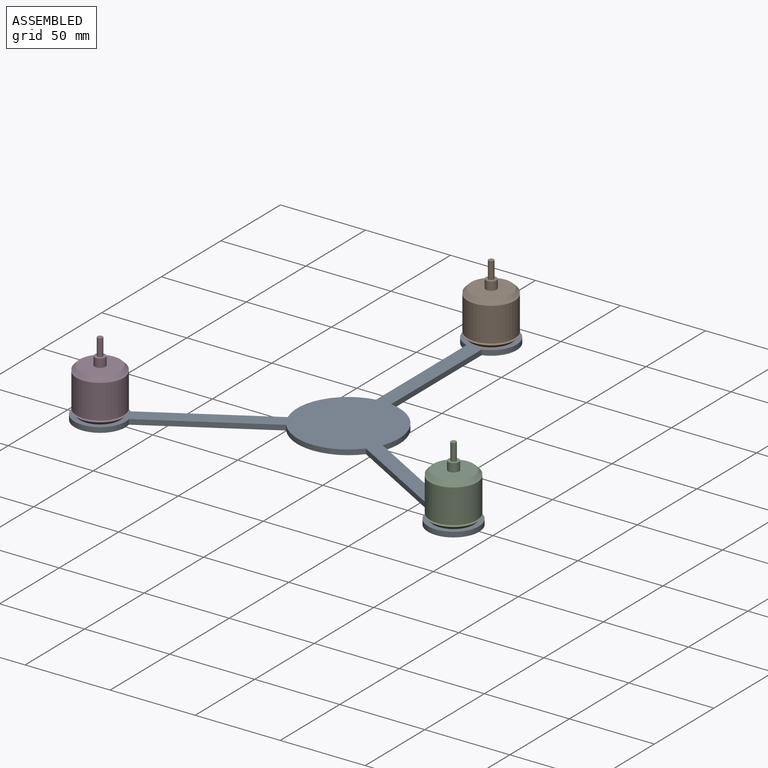
[diagram: assembled view]
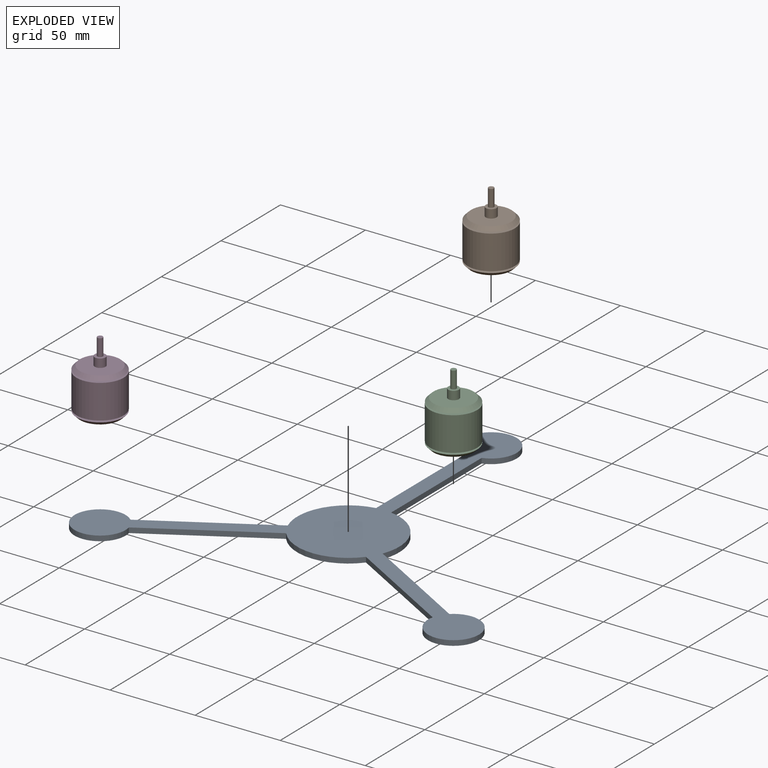
[diagram: exploded view]
GUIDED TOUR — MATED ASSEMBLY (Onshape document 2df442e925de51a92f70af06, AutoMate assembly 2df442e925de51a92f70af06_5c1b47b4a1ce3a622241a308_97fae621e1d96bd23d4e9ec1_default)

This assembly has 4 components, labeled P0..P3 below (a component is one placed occurrence of a part; the same part can appear more than once), held together by 3 mates. A mate is a constraint between two components; its type names the relative motion it leaves free:
  FASTENED — locks the two components together rigidly (no relative motion).
Axis/direction vectors are unit vectors and 'through' points are millimeter coordinates, both in the assembly's world frame.

MATES
  1. FASTENED "Fastened 2": P0 <-> P3, direction (0.000, 0.000, 1.000) through (-103.92, -60.00, 0.00) mm
  2. FASTENED "Fastened 2": P0 <-> P2, direction (0.000, 0.000, 1.000) through (103.92, -60.00, 0.00) mm
  3. FASTENED "Fastened 2": P0 <-> P1, direction (0.000, 0.000, 1.000) through (0.00, 120.00, 0.00) mm

ASSEMBLY ORDER
  1. P3 — the base component [order verified]
  2. P2 [order verified]
  3. P1 [order verified]
  4. P0 [order verified]
Order-tag legend:
  [order verified] — this step's position reverses a verified removal order: the component was checked to insert without passing through the ones already placed.

Of the 4 components, 4 carry the full construction recipe — the FeatureScript program that regenerates the part's solid from scratch; the rest are supplied as boundary geometry only.
Each toured component is shown spotlighted twice — in the assembled view, then in the exploded view, where a leader line traces a displaced component back to its assembled socket (saturated green if recipe-attached, orange if geometry-only; every other component desaturated gray) — followed by its recipe or geometry summary and the mates that hold it.
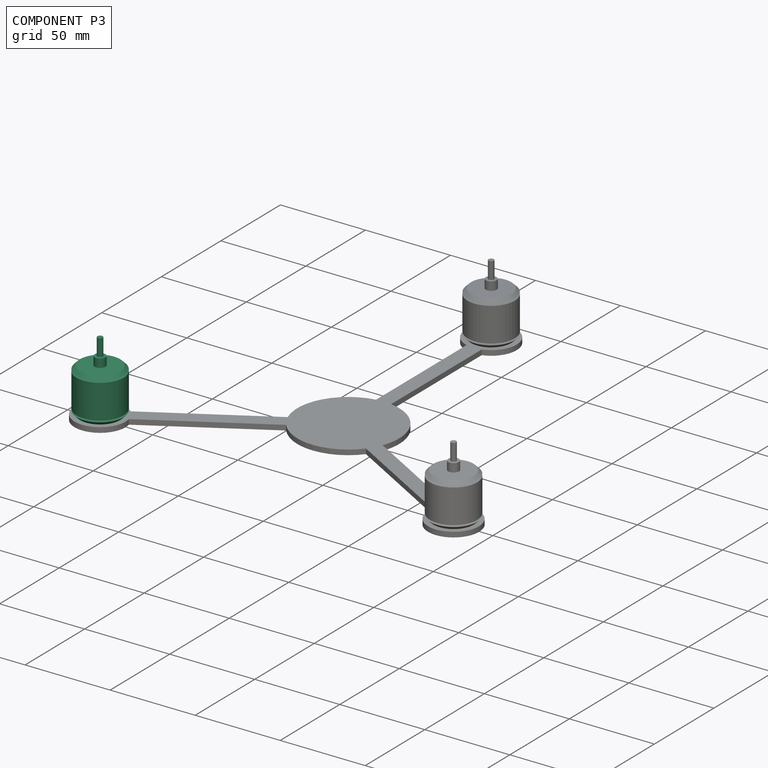
[diagram: component P3 — assembled]
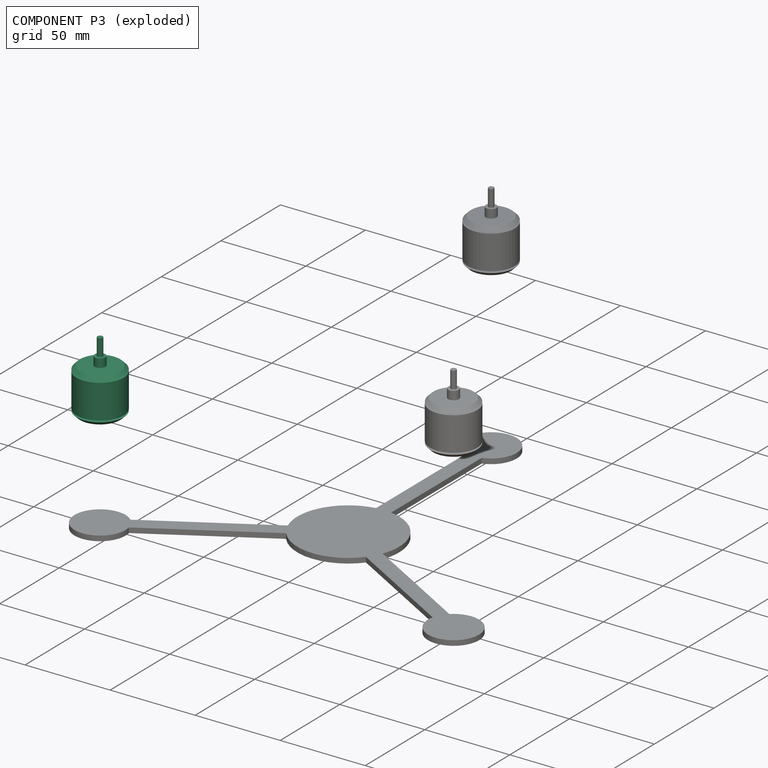
[diagram: component P3 — exploded]
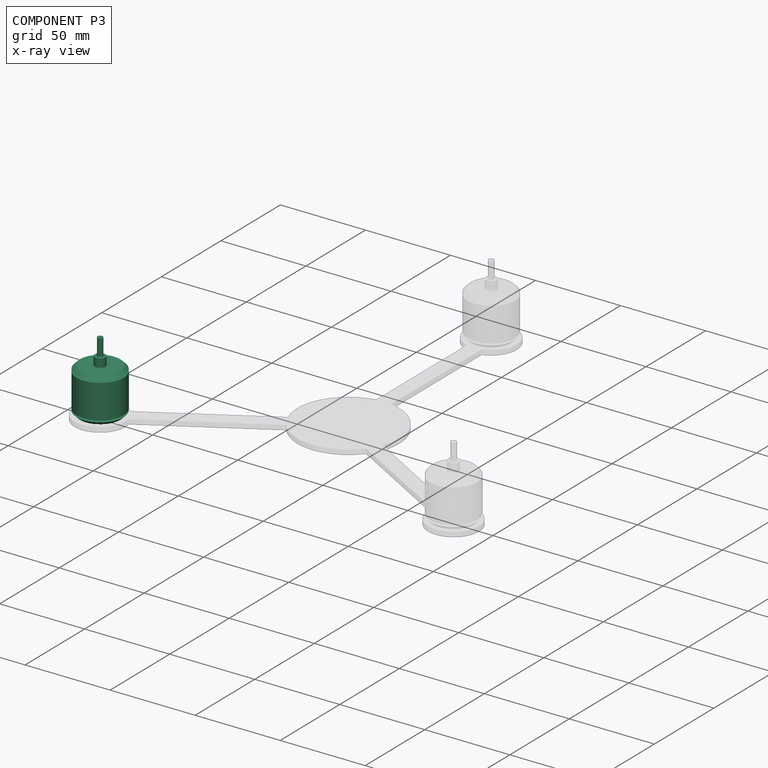
[diagram: component P3 — x-ray view]
COMPONENT P3 — same part as P1 (CADFS 00107351); its construction recipe is shown at P1.
Held by: FASTENED mate "Fastened 2" to P0.
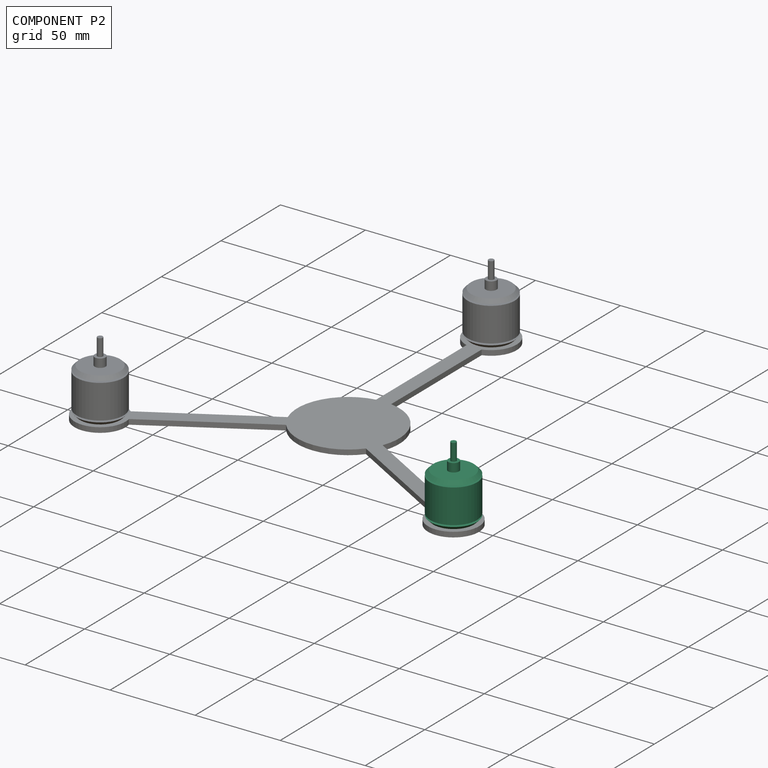
[diagram: component P2 — assembled]
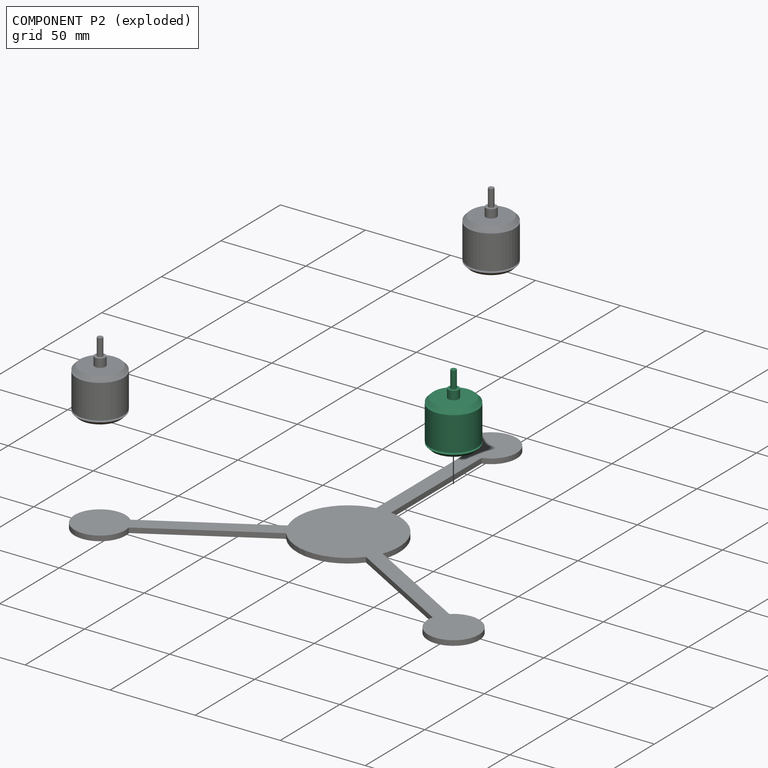
[diagram: component P2 — exploded]
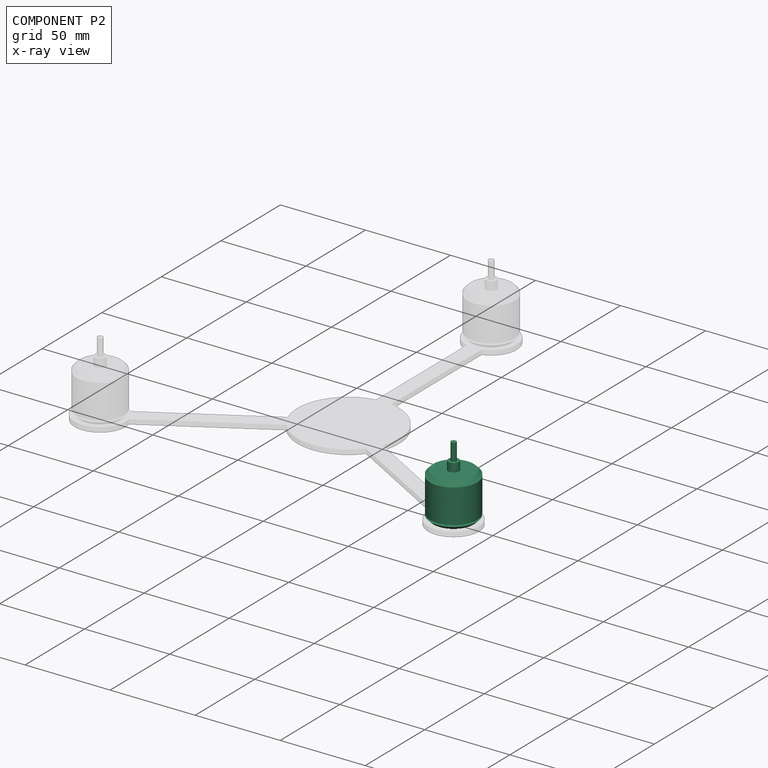
[diagram: component P2 — x-ray view]
COMPONENT P2 — same part as P1 (CADFS 00107351); its construction recipe is shown at P1.
Held by: FASTENED mate "Fastened 2" to P0.
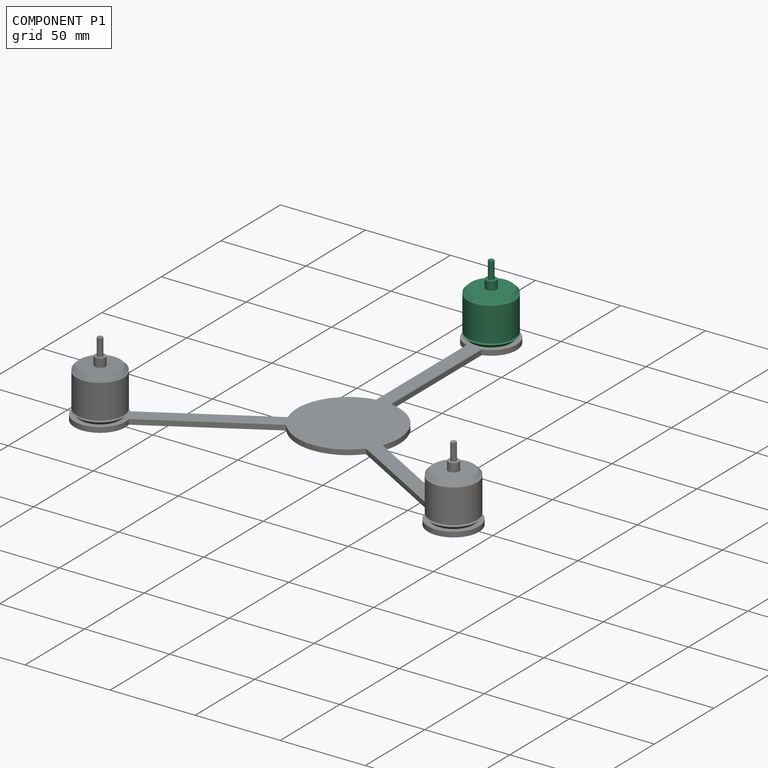
[diagram: component P1 — assembled]
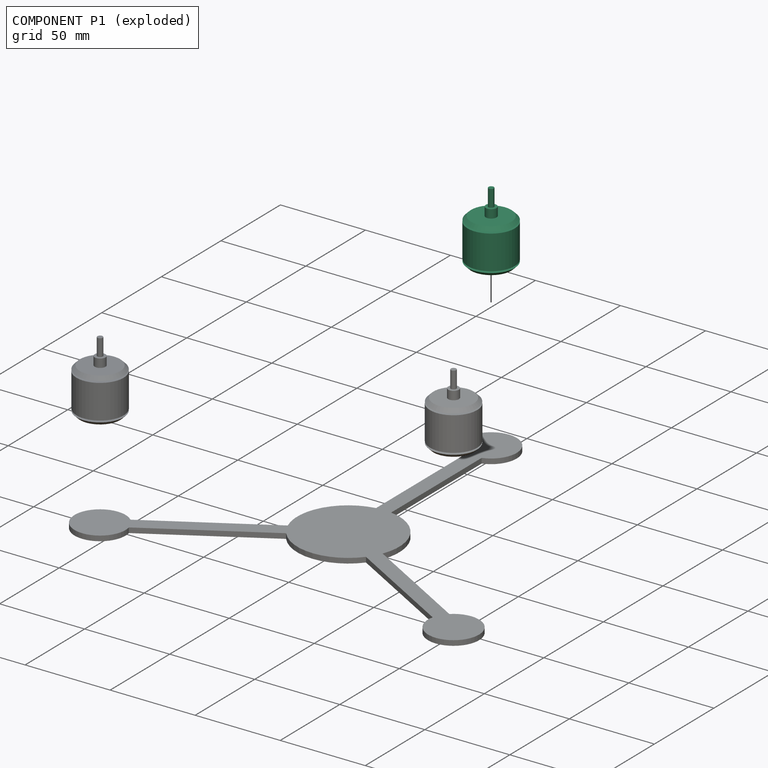
[diagram: component P1 — exploded]
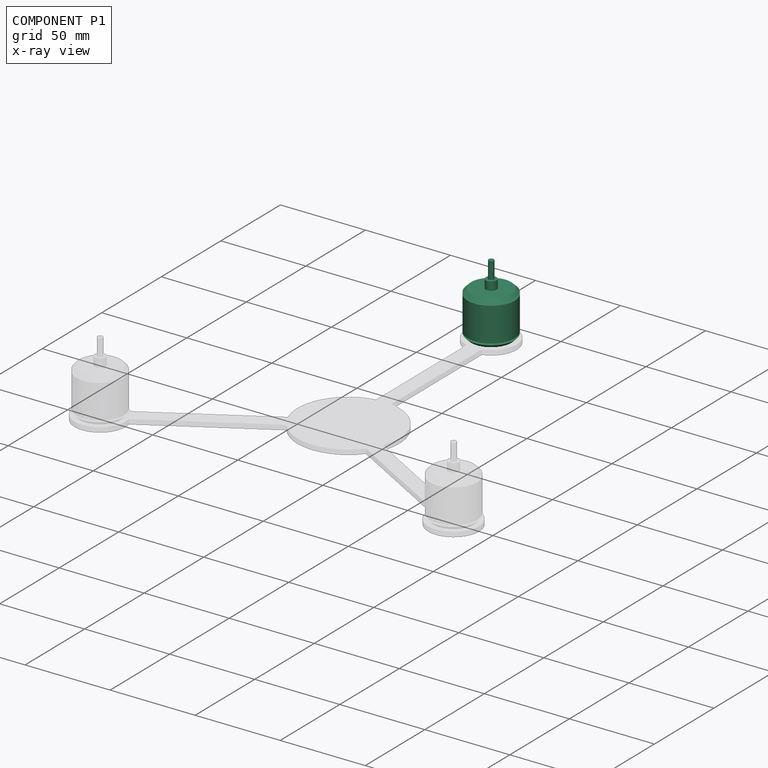
[diagram: component P1 — x-ray view]
COMPONENT P1 — recipe-attached (CADFS 00107351, mesh-verified: the recipe's output STEP matches this component's geometry to below the mesh-comparison resolution (tessellation chordal tolerance ~0.085 mm)).
Held by: FASTENED mate "Fastened 2" to P0.
Construction recipe (FeatureScript — the CAD program that rebuilds this solid; sketch coordinates are in the units given by the * unit suffixes, e.g. mm):

FeatureScript 1511;
import(path : "onshape/std/geometry.fs", version : "1511.0");
import(path : "onshape/std/common.fs", version : "1511.0");
const mm = millimeter;
const VERTEX = EntityType.VERTEX;
const EDGE = EntityType.EDGE;
const FACE = EntityType.FACE;
const BODY = EntityType.BODY;
function v(x, y){return vector(x, y);}
function OD(order){return orderDisambiguation(order);}
function OSD(set){return originalSetDisambiguation(set);}
function TD(topology){return topologyDisambiguation(topology);}
function TDD(query){return trueDependencyDisambiguation(query);}
function sQuery(a, b, c) {return sketchEntityQuery(a, b, c);}

annotation { "Feature Type Name" : "Feature", "Feature Type Description" : "" }
export const myFeature = defineFeature(function(context is Context, id is Id, definition is map)
    precondition{}
    {
        {
            var Q0;
            Q0=qCreatedBy(makeId("Front.planeOp"),FACE);
            var sketch = newSketch(context, id + "F0", { "sketchPlane" : qUnion([Q0])});
            skLineSegment(sketch, "E0", {"start": v(0, 0) * mm, "end": v(-11.85, 0) * mm});
            skLineSegment(sketch, "E1", {"start": v(-11.85, 0) * mm, "end": v(-13.85, 2) * mm});
            skLineSegment(sketch, "E2", {"start": v(-13.85, 2) * mm, "end": v(-1.59, 2) * mm});
            skLineSegment(sketch, "E3", {"start": v(0, 2) * mm, "end": v(0, 0) * mm});
            skLineSegment(sketch, "E4.bottom", {"start": v(-1.59, 3) * mm, "end": v(-13.85, 3) * mm});
            skLineSegment(sketch, "E4.top", {"start": v(-1.59, 23) * mm, "end": v(-13.85, 23) * mm});
            skLineSegment(sketch, "E4.left", {"start": v(0, 3) * mm, "end": v(0, 23) * mm});
            skLineSegment(sketch, "E4.right", {"start": v(-13.85, 3) * mm, "end": v(-13.85, 23) * mm});
            skLineSegment(sketch, "E5", {"start": v(-1.59, 24) * mm, "end": v(-13.85, 24) * mm});
            skLineSegment(sketch, "E6", {"start": v(-13.85, 24) * mm, "end": v(-11.85, 26) * mm});
            skLineSegment(sketch, "E7", {"start": v(-11.85, 26) * mm, "end": v(-3.18, 26) * mm});
            skLineSegment(sketch, "E8", {"start": v(0, 26) * mm, "end": v(0, 24) * mm});
            skLineSegment(sketch, "E9.top", {"start": v(-1.59, 31) * mm, "end": v(-3.18, 31) * mm});
            skLineSegment(sketch, "E9.left", {"start": v(0, 26) * mm, "end": v(0, 31) * mm});
            skLineSegment(sketch, "E9.right", {"start": v(-3.17, 26) * mm, "end": v(-3.18, 31) * mm});
            skLineSegment(sketch, "E10.top", {"start": v(0, 41) * mm, "end": v(-1.59, 41) * mm});
            skLineSegment(sketch, "E10.left", {"start": v(0, 31) * mm, "end": v(0, 41) * mm});
            skLineSegment(sketch, "E10.right", {"start": v(-1.59, 31) * mm, "end": v(-1.59, 41) * mm});
            skLineSegment(sketch, "E11", {"start": v(0, 3) * mm, "end": v(0, 2) * mm});
            skLineSegment(sketch, "E12", {"start": v(0, 23) * mm, "end": v(0, 24) * mm});
            skLineSegment(sketch, "E13", {"start": v(-1.59, 24) * mm, "end": v(-1.59, 23) * mm});
            skLineSegment(sketch, "E14", {"start": v(-1.59, 2) * mm, "end": v(-1.59, 3) * mm});
            skSolve(sketch);
        }
        {
            var Q0;
            Q0=qSketchRegion(id+"F0",true);
            var Q1;
            Q1=sQuery(id+"F0.wireOp",EDGE,"E4.left");
            revolve(context, id + "F1", {"entities" : qUnion([Q0]), "axis" : qUnion([Q1]), "revolveType" : RevolveType.FULL});
        }
    });
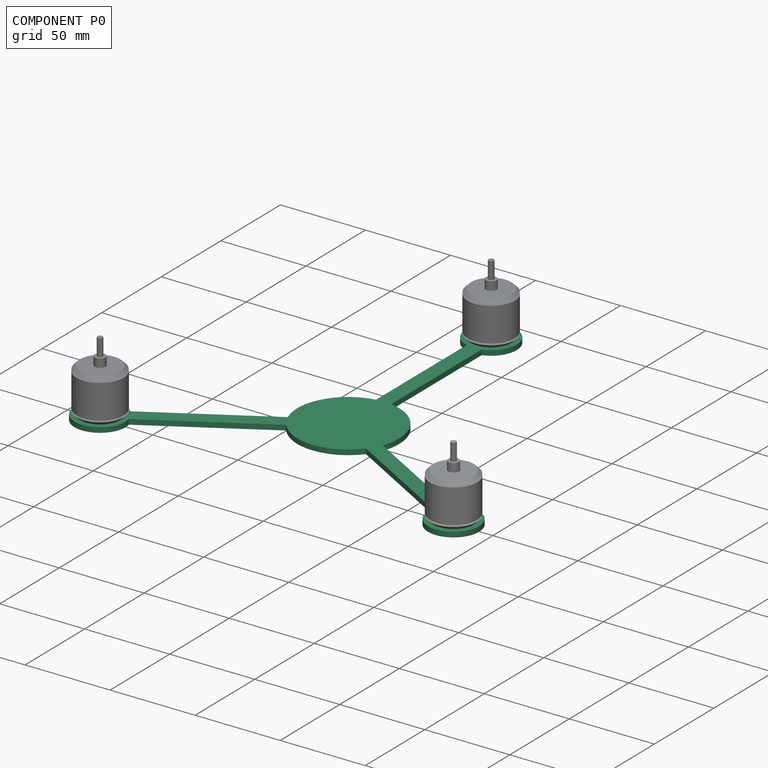
[diagram: component P0 — assembled]
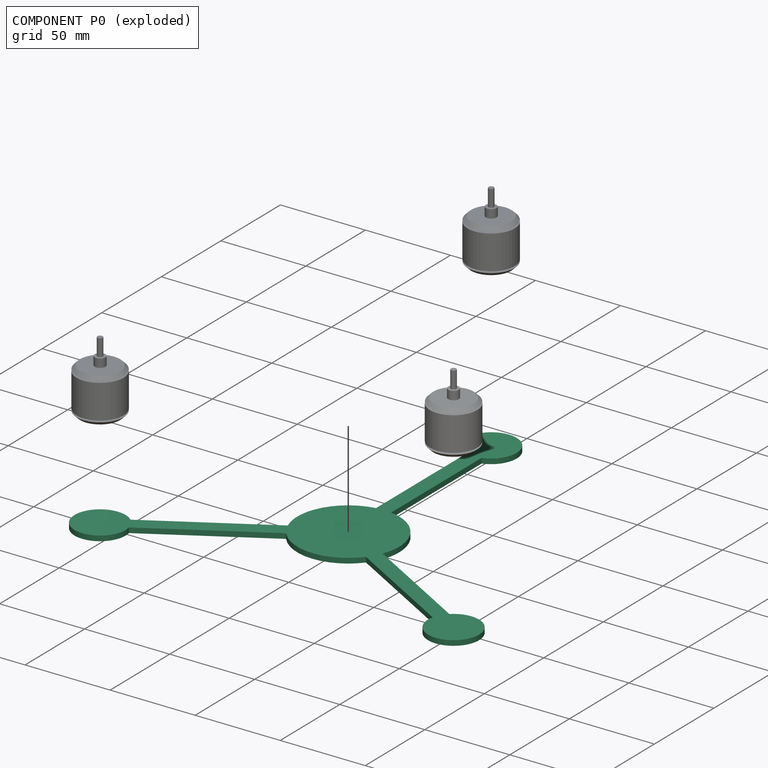
[diagram: component P0 — exploded]
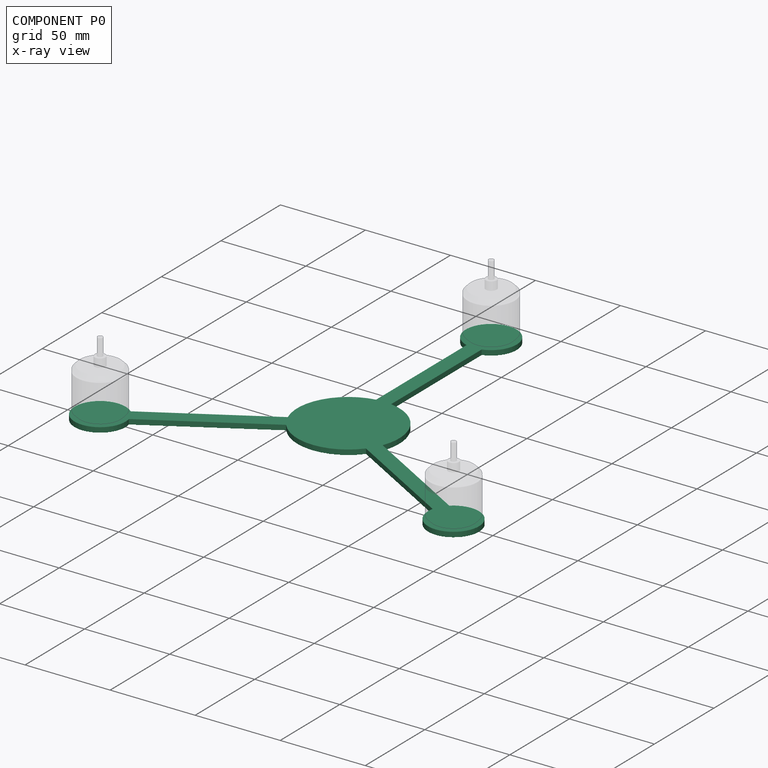
[diagram: component P0 — x-ray view]
COMPONENT P0 — recipe-attached (CADFS 00107350, mesh-verified: the recipe's output STEP matches this component's geometry to below the mesh-comparison resolution (tessellation chordal tolerance ~0.476 mm)).
Held by: FASTENED mate "Fastened 2" to P3; FASTENED mate "Fastened 2" to P2; FASTENED mate "Fastened 2" to P1.
Construction recipe (FeatureScript — the CAD program that rebuilds this solid; sketch coordinates are in the units given by the * unit suffixes, e.g. mm):

FeatureScript 1511;
import(path : "onshape/std/geometry.fs", version : "1511.0");
import(path : "onshape/std/common.fs", version : "1511.0");
const mm = millimeter;
const VERTEX = EntityType.VERTEX;
const EDGE = EntityType.EDGE;
const FACE = EntityType.FACE;
const BODY = EntityType.BODY;
function v(x, y){return vector(x, y);}
function OD(order){return orderDisambiguation(order);}
function OSD(set){return originalSetDisambiguation(set);}
function TD(topology){return topologyDisambiguation(topology);}
function TDD(query){return trueDependencyDisambiguation(query);}
function sQuery(a, b, c) {return sketchEntityQuery(a, b, c);}

annotation { "Feature Type Name" : "Feature", "Feature Type Description" : "" }
export const myFeature = defineFeature(function(context is Context, id is Id, definition is map)
    precondition{}
    {
        {
            var Q0;
            Q0=qCreatedBy(makeId("Top.planeOp"),FACE);
            var sketch = newSketch(context, id + "F0", { "sketchPlane" : qUnion([Q0])});
            skArc(sketch, "E0", {"start": v(4.43, 105.67) * mm, "mid": v(0, 135) * mm, "end": v(-4.43, 105.67) * mm});
            skArc(sketch, "E1", {"start": v(89.3, -56.68) * mm, "mid": v(116.91, -67.5) * mm, "end": v(93.73, -49) * mm});
            skArc(sketch, "E2", {"start": v(-93.73, -49) * mm, "mid": v(-116.91, -67.5) * mm, "end": v(-89.3, -56.68) * mm});
            skLineSegment(sketch, "E3", {"start": v(0, 0) * mm, "end": v(-103.92, -60) * mm, "construction": true});
            skLineSegment(sketch, "E4", {"start": v(0, 0) * mm, "end": v(103.92, -60) * mm, "construction": true});
            skLineSegment(sketch, "E5", {"start": v(0, 0) * mm, "end": v(0, 120) * mm, "construction": true});
            skArc(sketch, "E6", {"start": v(-4.43, 29.67) * mm, "mid": v(-25.98, 15) * mm, "end": v(-27.91, -11) * mm});
            skLineSegment(sketch, "E7", {"start": v(-4.43, 105.67) * mm, "end": v(-4.43, 29.67) * mm});
            skLineSegment(sketch, "E8", {"start": v(4.43, 105.67) * mm, "end": v(4.43, 29.67) * mm});
            skLineSegment(sketch, "E9", {"start": v(-93.73, -49) * mm, "end": v(-27.91, -11) * mm});
            skLineSegment(sketch, "E10", {"start": v(-89.3, -56.68) * mm, "end": v(-23.48, -18.68) * mm});
            skLineSegment(sketch, "E11", {"start": v(27.91, -11) * mm, "end": v(93.73, -49) * mm});
            skLineSegment(sketch, "E12", {"start": v(23.48, -18.68) * mm, "end": v(89.3, -56.68) * mm});
            skArc(sketch, "E13.trimOffspring", {"start": v(-23.48, -18.68) * mm, "mid": v(0, -30) * mm, "end": v(23.48, -18.68) * mm});
            skArc(sketch, "E14.trimOffspring", {"start": v(27.91, -11) * mm, "mid": v(25.98, 15) * mm, "end": v(4.43, 29.67) * mm});
            skSolve(sketch);
        }
        {
            var Q0;
            Q0 = qSketchRegion(id + "F0", true);
            extrude(context, id + "F1", {"entities" : qUnion([Q0]), "depth" : 3 * mm});
        }
    });
PROVENANCE & LICENSES
Assembly (occurrences, transforms, mates, per-part STEP geometry): AutoMate dataset, Zenodo record 7776208, CC0.
Construction recipes: CADFS (HuggingFace VladPyatov/CADFS, CC-BY-4.0, layered over the ABC dataset), FeatureScript reconstruction programs keyed by ABC model id.
Join: ABC meta listings map ABC model id -> Onshape documentId; within a shared document, parts are matched by geometric signature (bounding-box dims + volume at 0.1% relative tolerance, exact B-rep face/solid counts).
Verification: 4 of this assembly's 4 components carry a recipe attachment, and every attachment is mesh-verified: the CADFS STEP and the AutoMate member STEP were compared as meshes in their shared local frame (symmetric sampled-point-to-mesh distance); worst across the 4 attachments: below the mesh-comparison resolution (tessellation chordal tolerance ~0.476 mm) on a 317 mm part.
Renders: orthographic iso camera (az 35 / el 25); the floor grid conveys scale (grid pitch printed in each image; no ruler). In the exploded view each component is displaced by its stored offset vector: the offsets alone carry the explosion direction (mate normal/axis signs are not orientation cues and do not encode it), and separation distances are assigned per mate-chain, not proportionally to assembly-order depth.
